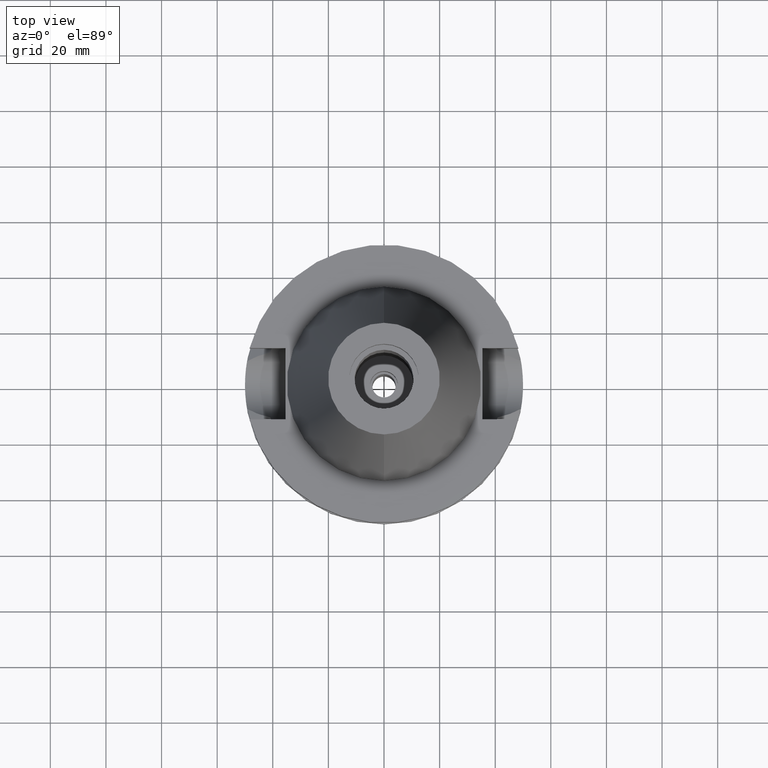
[diagram: clean part render]
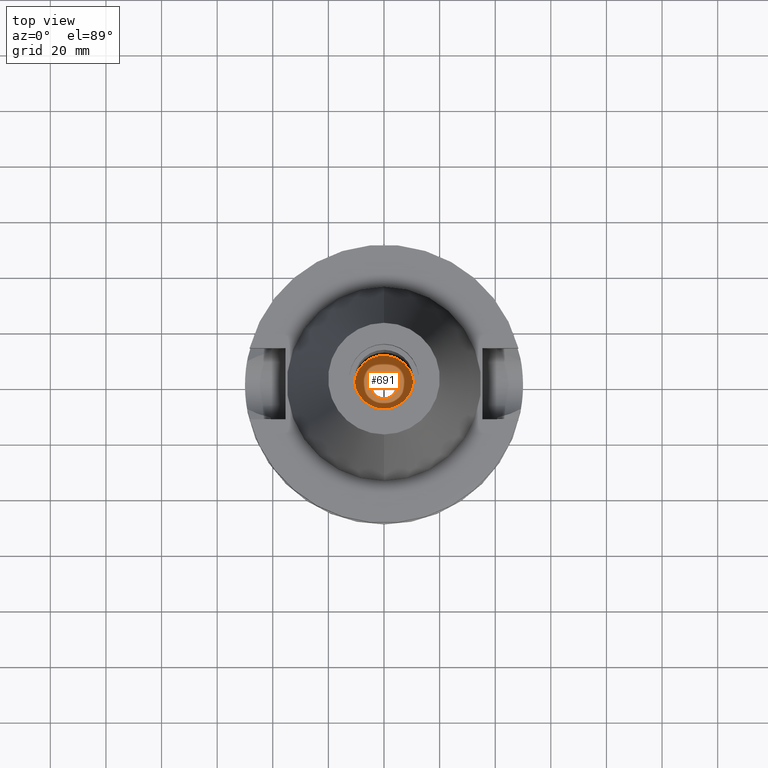
[diagram: same view with one face highlighted and labeled with its STEP entity id]
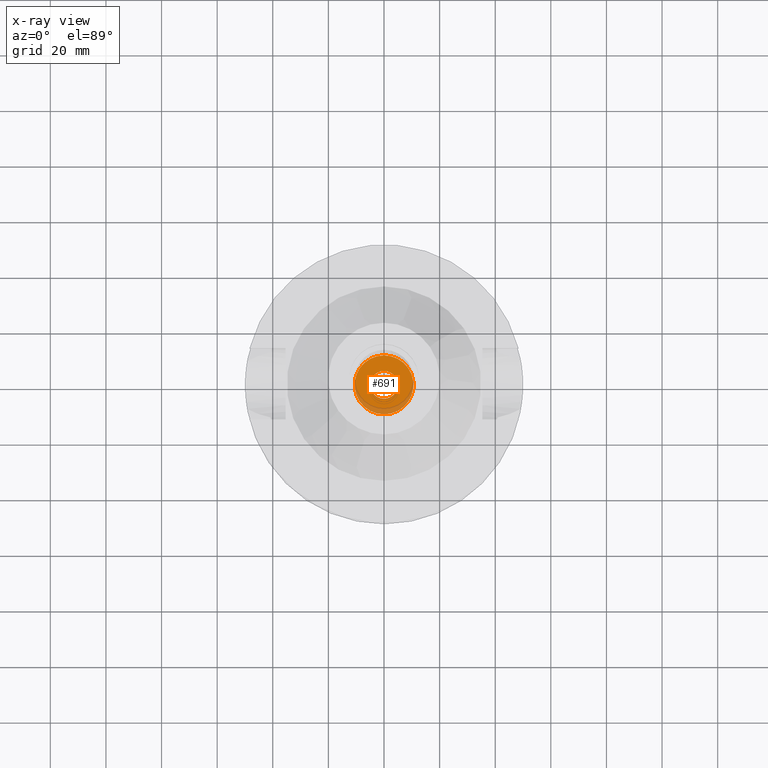
[diagram: x-ray of the same camera — body ghosted, the highlighted face saturated]
A machine part, top view. The second image highlights one B-rep face of the part: STEP entity #691.
The next image is the same camera in x-ray: the body ghosted, the highlighted face saturated — about 16% of this face is hidden behind the body in this view.
In plain terms, the highlighted planar face has unit normal (0, 0, -1).
Its self-contained STEP definition (entity closure, byte-faithful):
#154 = VERTEX_POINT ( 'NONE', #2324 ) ;
#220 = CARTESIAN_POINT ( 'NONE',  ( 0.0000000000000000000, 5.000000000000000000, -28.19999999999999929 ) ) ;
#227 = AXIS2_PLACEMENT_3D ( 'NONE', #1106, #1396, #2002 ) ;
#486 = CARTESIAN_POINT ( 'NONE',  ( 0.0000000000000000000, 2.603476630306999805E-14, -28.19999999999999929 ) ) ;
#490 = DIRECTION ( 'NONE',  ( 0.0000000000000000000, 0.0000000000000000000, 1.000000000000000000 ) ) ;
#691 = ADVANCED_FACE ( 'NONE', ( #2937, #1274 ), #1217, .F. ) ;
#798 = AXIS2_PLACEMENT_3D ( 'NONE', #1308, #3589, #3349 ) ;
#800 = EDGE_CURVE ( 'NONE', #3238, #2114, #1275, .T. ) ;
#826 = ORIENTED_EDGE ( 'NONE', *, *, #1446, .F. ) ;
#987 = DIRECTION ( 'NONE',  ( 0.0000000000000000000, 1.000000000000000000, 0.0000000000000000000 ) ) ;
#1007 = DIRECTION ( 'NONE',  ( 0.0000000000000000000, -1.000000000000000000, 0.0000000000000000000 ) ) ;
#1041 = AXIS2_PLACEMENT_3D ( 'NONE', #1325, #490, #1007 ) ;
#1106 = CARTESIAN_POINT ( 'NONE',  ( 0.0000000000000000000, 2.603476630306999805E-14, -28.19999999999999929 ) ) ;
#1183 = CARTESIAN_POINT ( 'NONE',  ( 0.0000000000000000000, 10.59999999999999964, -28.19999999999999929 ) ) ;
#1217 = PLANE ( 'NONE',  #1335 ) ;
#1257 = DIRECTION ( 'NONE',  ( 0.0000000000000000000, 0.0000000000000000000, -1.000000000000000000 ) ) ;
#1274 = FACE_BOUND ( 'NONE', #2409, .T. ) ;
#1275 = CIRCLE ( 'NONE', #798, 10.59999999999999964 ) ;
#1282 = CIRCLE ( 'NONE', #1041, 5.000000000000000000 ) ;
#1308 = CARTESIAN_POINT ( 'NONE',  ( 0.0000000000000000000, 2.603476630306999805E-14, -28.19999999999999929 ) ) ;
#1325 = CARTESIAN_POINT ( 'NONE',  ( 0.0000000000000000000, 2.603476630306999805E-14, -28.19999999999999929 ) ) ;
#1335 = AXIS2_PLACEMENT_3D ( 'NONE', #1806, #1257, #2107 ) ;
#1396 = DIRECTION ( 'NONE',  ( 0.0000000000000000000, 0.0000000000000000000, 1.000000000000000000 ) ) ;
#1398 = EDGE_CURVE ( 'NONE', #154, #1753, #1282, .T. ) ;
#1446 = EDGE_CURVE ( 'NONE', #1753, #154, #3143, .T. ) ;
#1745 = EDGE_CURVE ( 'NONE', #2114, #3238, #2551, .T. ) ;
#1753 = VERTEX_POINT ( 'NONE', #220 ) ;
#1806 = CARTESIAN_POINT ( 'NONE',  ( 0.0000000000000000000, 0.0000000000000000000, -28.19999999999999929 ) ) ;
#2002 = DIRECTION ( 'NONE',  ( 0.0000000000000000000, 1.000000000000000000, 0.0000000000000000000 ) ) ;
#2079 = ORIENTED_EDGE ( 'NONE', *, *, #800, .F. ) ;
#2107 = DIRECTION ( 'NONE',  ( 0.0000000000000000000, -1.000000000000000000, 0.0000000000000000000 ) ) ;
#2114 = VERTEX_POINT ( 'NONE', #1183 ) ;
#2145 = ORIENTED_EDGE ( 'NONE', *, *, #1745, .F. ) ;
#2196 = DIRECTION ( 'NONE',  ( 0.0000000000000000000, 0.0000000000000000000, -1.000000000000000000 ) ) ;
#2324 = CARTESIAN_POINT ( 'NONE',  ( 0.0000000000000000000, -5.000000000000000000, -28.19999999999999929 ) ) ;
#2409 = EDGE_LOOP ( 'NONE', ( #826, #3140 ) ) ;
#2551 = CIRCLE ( 'NONE', #3388, 10.59999999999999964 ) ;
#2937 = FACE_OUTER_BOUND ( 'NONE', #3653, .T. ) ;
#2953 = CARTESIAN_POINT ( 'NONE',  ( 0.0000000000000000000, -10.59999999999999964, -28.19999999999999929 ) ) ;
#3140 = ORIENTED_EDGE ( 'NONE', *, *, #1398, .F. ) ;
#3143 = CIRCLE ( 'NONE', #227, 5.000000000000000000 ) ;
#3238 = VERTEX_POINT ( 'NONE', #2953 ) ;
#3349 = DIRECTION ( 'NONE',  ( 0.0000000000000000000, -1.000000000000000000, 0.0000000000000000000 ) ) ;
#3388 = AXIS2_PLACEMENT_3D ( 'NONE', #486, #2196, #987 ) ;
#3589 = DIRECTION ( 'NONE',  ( 0.0000000000000000000, 0.0000000000000000000, -1.000000000000000000 ) ) ;
#3653 = EDGE_LOOP ( 'NONE', ( #2145, #2079 ) ) ;